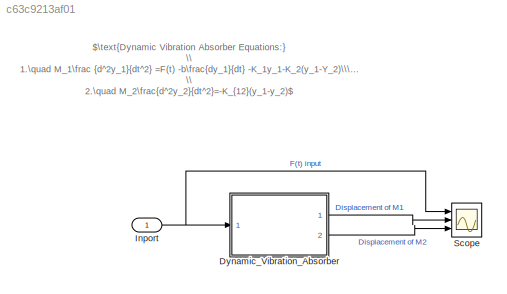
MODEL slx_c63c9213af01
KIND model
CONFIG AbsTol = auto
CONFIG EnableMultiTasking = off
CONFIG FixedStep = auto
CONFIG MaxStep = 0.01
CONFIG MinStep = auto
CONFIG PreLoadFcn = clearvars\nload('Data.mat')
CONFIG RelTol = 1e-3
CONFIG SampleTimeConstraint = Unconstrained
CONFIG SolverName = VariableStepAuto
CONFIG StartTime = 0.0
CONFIG StopTime = 10
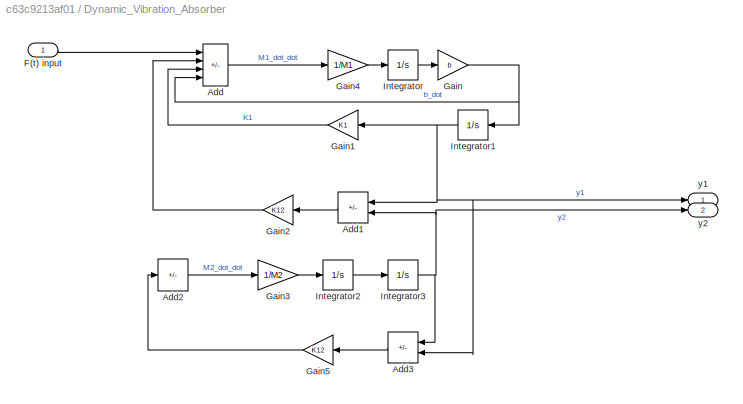
BLOCK [SubSystem] Dynamic_Vibration_Absorber
  Ports = [1, 2]
  RequestExecContextInheritance = off
BLOCK [Sum] Dynamic_Vibration_Absorber/Add
  IconShape = rectangular
  Inputs = +---
  Ports = [4, 1]
BLOCK [Sum] Dynamic_Vibration_Absorber/Add1
  IconShape = rectangular
  Inputs = +-
  NameLocation = top
  Ports = [2, 1]
BLOCK [Sum] Dynamic_Vibration_Absorber/Add2
  IconShape = rectangular
  Inputs = -
  Ports = [1, 1]
BLOCK [Sum] Dynamic_Vibration_Absorber/Add3
  IconShape = rectangular
  Inputs = +-
  NameLocation = top
  Ports = [2, 1]
BLOCK [Inport] Dynamic_Vibration_Absorber/F(t) input
BLOCK [Gain] Dynamic_Vibration_Absorber/Gain
  Gain = b
BLOCK [Gain] Dynamic_Vibration_Absorber/Gain1
  Gain = K1
  NameLocation = top
BLOCK [Gain] Dynamic_Vibration_Absorber/Gain2
  Gain = K12
  NameLocation = top
BLOCK [Gain] Dynamic_Vibration_Absorber/Gain3
  Gain = 1/M2
  NameLocation = top
BLOCK [Gain] Dynamic_Vibration_Absorber/Gain4
  Gain = 1/M1
  NameLocation = top
BLOCK [Gain] Dynamic_Vibration_Absorber/Gain5
  Gain = K12
  NameLocation = top
BLOCK [Integrator] Dynamic_Vibration_Absorber/Integrator
  Ports = [1, 1]
BLOCK [Integrator] Dynamic_Vibration_Absorber/Integrator1
  NameLocation = top
  Ports = [1, 1]
BLOCK [Integrator] Dynamic_Vibration_Absorber/Integrator2
  Ports = [1, 1]
BLOCK [Integrator] Dynamic_Vibration_Absorber/Integrator3
  Ports = [1, 1]
BLOCK [Outport] Dynamic_Vibration_Absorber/y1
BLOCK [Outport] Dynamic_Vibration_Absorber/y2
  Port = 2
BLOCK [Inport] Inport
BLOCK [Scope] Scope
  Floating = off
  NumInputPorts = 3
  Ports = [3]
  ScopeSpecificationString = Simulink.scopes.TimeScopeBlockCfg('CurrentConfiguration', extmgr.ConfigurationSet(extmgr.Configuration('Core','General UI',true),extmgr.Configuration('Core','Source UI',true),extmgr.Configuration('Sources','WiredSimulink',true),extmgr.Configuration('Visuals','Time Domain',true,'SerializedDisplays',{struct('MinYLimReal','-2.49996','MaxYLimReal','2.4998','YLabelReal','','MinYLimMag','0.00000','MaxYL...<+2702ch>
ANNOTATION (root): $\text{Dynamic Vibration Absorber Equations:} \\ 1.\quad M_1\frac {d^2y_1}{dt^2} =F(t) -b\frac{dy_1}{dt} -K_1y_1-K_2(y_1-Y_2)\\\qquad \text{where, F(t) = 2*sin(10*t)} \\ 2.\quad M_2\frac{d^2y_2}{dt^2}=-K_{12}(y_1-y_2)$
LINE Dynamic_Vibration_Absorber/Add1:1 -> Dynamic_Vibration_Absorber/Gain2:1
LINE Dynamic_Vibration_Absorber/Add2:1 -> Dynamic_Vibration_Absorber/Gain3:1
LINE Dynamic_Vibration_Absorber/Add3:1 -> Dynamic_Vibration_Absorber/Gain5:1
LINE Dynamic_Vibration_Absorber/Add:1 -> Dynamic_Vibration_Absorber/Gain4:1
LINE Dynamic_Vibration_Absorber/F(t) input:1 -> Dynamic_Vibration_Absorber/Add:1
LINE Dynamic_Vibration_Absorber/Gain1:1 -> Dynamic_Vibration_Absorber/Add:3
LINE Dynamic_Vibration_Absorber/Gain2:1 -> Dynamic_Vibration_Absorber/Add:2
LINE Dynamic_Vibration_Absorber/Gain3:1 -> Dynamic_Vibration_Absorber/Integrator2:1
LINE Dynamic_Vibration_Absorber/Gain4:1 -> Dynamic_Vibration_Absorber/Integrator:1
LINE Dynamic_Vibration_Absorber/Gain5:1 -> Dynamic_Vibration_Absorber/Add2:1
NET Dynamic_Vibration_Absorber/Gain:1 -> Dynamic_Vibration_Absorber/Add:4, Dynamic_Vibration_Absorber/Integrator1:1
NET Dynamic_Vibration_Absorber/Integrator1:1 -> Dynamic_Vibration_Absorber/Add1:1, Dynamic_Vibration_Absorber/Add3:2, Dynamic_Vibration_Absorber/Gain1:1, Dynamic_Vibration_Absorber/y1:1
LINE Dynamic_Vibration_Absorber/Integrator2:1 -> Dynamic_Vibration_Absorber/Integrator3:1
NET Dynamic_Vibration_Absorber/Integrator3:1 -> Dynamic_Vibration_Absorber/Add1:2, Dynamic_Vibration_Absorber/Add3:1, Dynamic_Vibration_Absorber/y2:1
LINE Dynamic_Vibration_Absorber/Integrator:1 -> Dynamic_Vibration_Absorber/Gain:1
LINE Dynamic_Vibration_Absorber:1 -> Scope:2
LINE Dynamic_Vibration_Absorber:2 -> Scope:3
NET Inport:1 -> Dynamic_Vibration_Absorber:1, Scope:1
note: NET lines group one-source signal fan-out (src -> all destinations, sorted); 1:1 wires keep LINE
